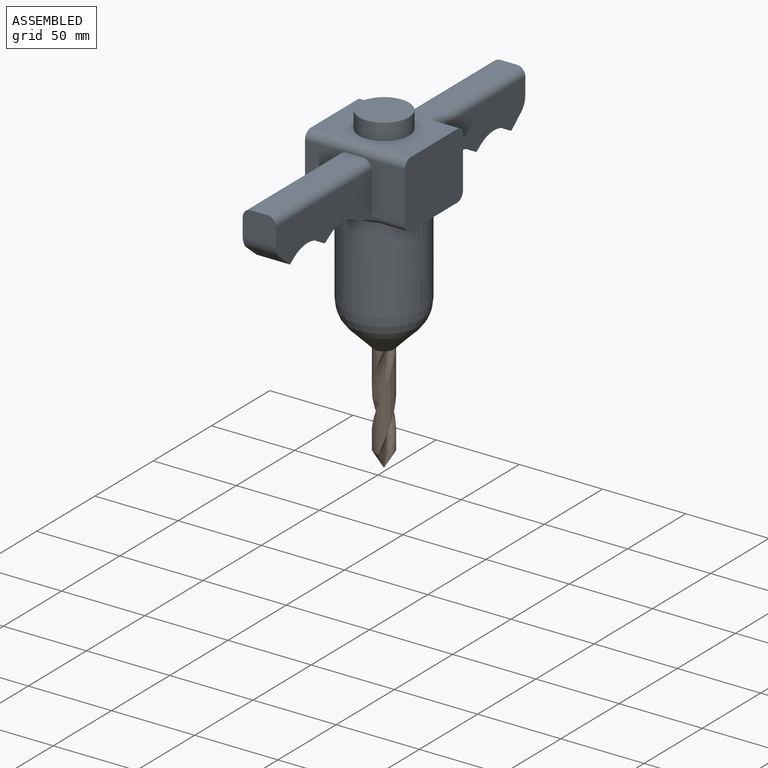
[diagram: assembled view]
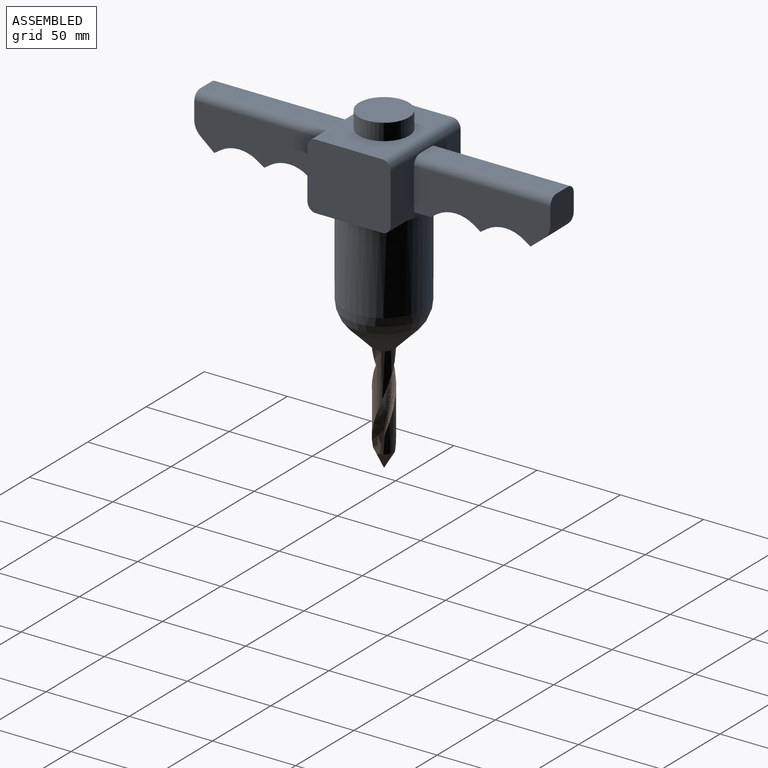
[diagram: assembled view, second angle]
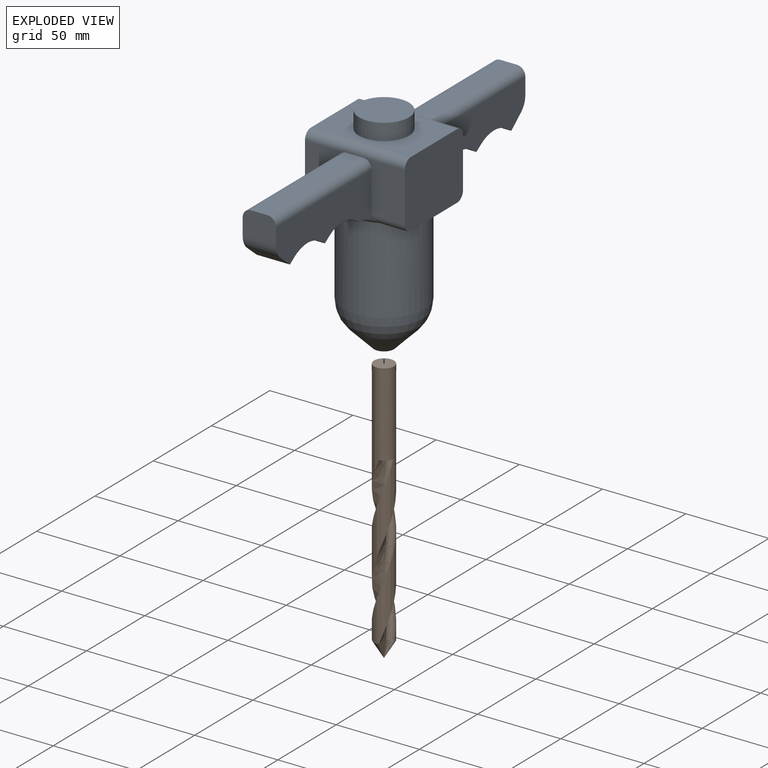
[diagram: exploded view]
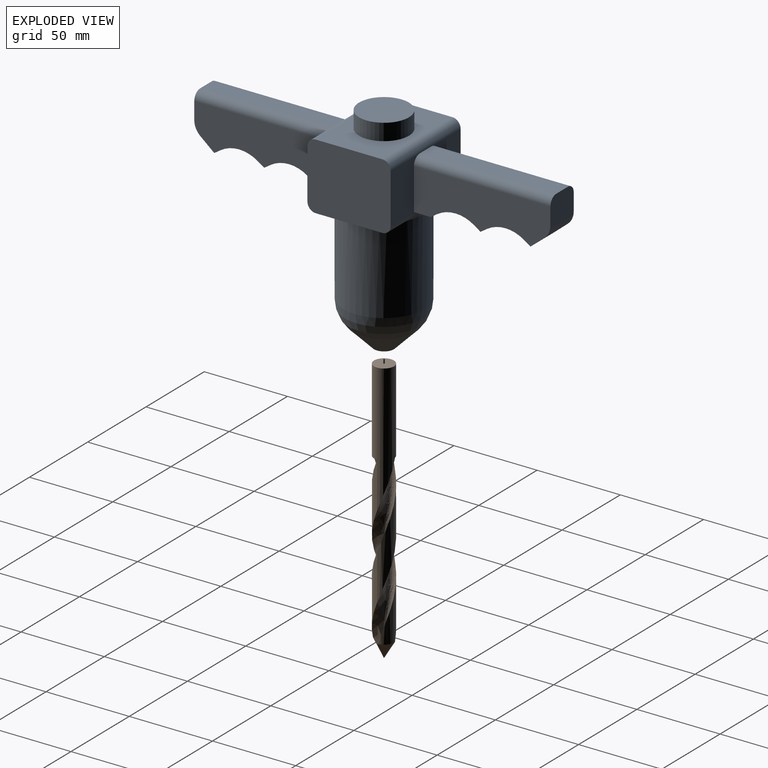
[diagram: exploded view, second angle]
ASSEMBLY  parts=2 mates=2
PART A: 57 faces, bbox 60x214x128.4 mm
  f0: plane 40x16.07mm, normal (0,0,-1), area 349.7mm2, adj f10,f16,f51,f55
  f1: cone r=17.81mm half-angle=45deg, axis (0,0,1), area 1248.9mm2, adj f3,f7
  f2: cylinder r=23.37mm len=52.13mm, axis (0,0,-1), area 7655.5mm2, adj f3,f4
  f3: torus R=4.37mm, axis (0,0,-1), area 2013.9mm2, adj f1,f2
  f4: plane 46.75x46.75mm, normal (0,0,-1), area 1603.1mm2, adj f2,f6
  f5: plane 12x12mm, normal (0,0,-1), area 113.1mm2, adj f6
  f6: cylinder r=6mm len=15.63mm, axis (0,0,-1), area 589.1mm2, adj f4,f5
  f7: cylinder r=6mm len=12mm, axis (0,0,-1), area 37.7mm2, adj f1,f8
  f8: cone r=18.51mm half-angle=45deg, axis (0,0,1), area 1363mm2, adj f7,f15
  f9: plane 60x40mm, normal (0,0,1), area 1693.1mm2, adj f10,f12,f17,f52,f56
  f10: plane 50x40mm, normal (-1,0,0), area 1978.5mm2, adj f0,f9,f13,f14,f51,f52,f55,f56
  f11: plane 40x16.07mm, normal (0,0,-1), area 349.7mm2, adj f12,f16,f49,f53
  f12: plane 50x40mm, normal (1,0,0), area 1978.5mm2, adj f9,f11,f13,f14,f49,f52,f53,f56
  f13: plane 60x32.58mm, normal (0,-1,0), area 1244.7mm2, adj f10,f12,f42,f43,f44,f45,f46,f53
  f14: plane 60x32.58mm, normal (0,1,0), area 1244.7mm2, adj f10,f12,f26,f30,f31,f47,f48,f49
  f15: torus R=4.37mm, axis (0,0,-1), area 2208.7mm2, adj f8,f16
  f16: cylinder r=24.37mm len=51.72mm, axis (0,0,-1), area 7919.6mm2, adj f0,f11,f15,f50,f54
  f17: cylinder r=15mm len=30mm, axis (0,0,-1), area 942.5mm2, adj f9,f18
  f18: plane 30x30mm, normal (0,0,1), area 706.9mm2, adj f17
  f19: plane 20x3.91mm, normal (0,0.55,-0.83), area 93.9mm2, adj f20,f29,f30,f31
  f20: cylinder r=20mm len=22.19mm, axis (-1,0,0), area 470.4mm2, adj f19,f21,f30,f31
  f21: plane 20x3.91mm, normal (0,-0.55,-0.83), area 93.9mm2, adj f20,f22,f30,f31
  f22: plane 20x8.4mm, normal (0,0.64,-0.77), area 218.7mm2, adj f21,f23,f30,f31
  f23: cylinder r=10mm len=20mm, axis (-1,0,0), area 175.2mm2, adj f22,f24,f30,f31
  f24: plane 20x15.32mm, normal (0,1,0), area 295.6mm2, adj f23,f25,f30,f31,f47,f48
  f25: plane 82x10mm, normal (0,0,1), area 820mm2, adj f24,f47,f48,f52
  f26: plane 20x10mm, normal (0,0,-1), area 200mm2, adj f14,f27,f30,f31
  f27: plane 20x3.91mm, normal (0,0.55,-0.83), area 93.9mm2, adj f26,f28,f30,f31
  f28: cylinder r=20mm len=22.19mm, axis (-1,0,0), area 470.4mm2, adj f27,f29,f30,f31
  f29: plane 20x3.91mm, normal (0,-0.55,-0.83), area 93.9mm2, adj f19,f28,f30,f31
  f30: plane 82x25mm, normal (1,0,0), area 1749.9mm2, adj f14,f19,f20,f21,f22,f23,f24,f26
  f31: plane 82x25mm, normal (-1,0,0), area 1749.9mm2, adj f14,f19,f20,f21,f22,f23,f24,f26
  f32: plane 82x10mm, normal (0,0,1), area 820mm2, adj f33,f45,f46,f56
  f33: plane 20x15.32mm, normal (0,-1,0), area 295.6mm2, adj f32,f34,f43,f44,f45,f46
  f34: cylinder r=10mm len=20mm, axis (-1,0,0), area 175.2mm2, adj f33,f35,f43,f44
  f35: plane 20x8.4mm, normal (0,-0.64,-0.77), area 218.7mm2, adj f34,f36,f43,f44
  f36: plane 20x3.91mm, normal (0,0.55,-0.83), area 93.9mm2, adj f35,f37,f43,f44
  f37: cylinder r=20mm len=22.19mm, axis (-1,0,0), area 470.4mm2, adj f36,f38,f43,f44
  f38: plane 20x3.91mm, normal (0,-0.55,-0.83), area 93.9mm2, adj f37,f39,f43,f44
  f39: plane 20x3.91mm, normal (0,0.55,-0.83), area 93.9mm2, adj f38,f40,f43,f44
  f40: cylinder r=20mm len=22.19mm, axis (-1,0,0), area 470.4mm2, adj f39,f41,f43,f44
  f41: plane 20x3.91mm, normal (0,-0.55,-0.83), area 93.9mm2, adj f40,f42,f43,f44
  f42: plane 20x10mm, normal (0,0,-1), area 200mm2, adj f13,f41,f43,f44
  f43: plane 82x25mm, normal (1,0,0), area 1749.9mm2, adj f13,f33,f34,f35,f36,f37,f38,f39
  f44: plane 82x25mm, normal (-1,0,0), area 1749.9mm2, adj f13,f33,f34,f35,f36,f37,f38,f39
  f45: cylinder r=5mm len=82mm, axis (0,-1,0), area 644mm2, adj f13,f32,f33,f44
  f46: cylinder r=5mm len=82mm, axis (0,1,0), area 644mm2, adj f13,f32,f33,f43
  f47: cylinder r=5mm len=82mm, axis (0,-1,0), area 644mm2, adj f14,f24,f25,f31
  f48: cylinder r=5mm len=82mm, axis (0,1,0), area 644mm2, adj f14,f24,f25,f30
  f49: cylinder r=5mm len=16.07mm, axis (1,0,0), area 126.2mm2, adj f11,f12,f14,f50
  f50: bspline ~29.46x5.62mm, area 127.4mm2, adj f14,f16,f49,f51
  f51: cylinder r=5mm len=16.07mm, axis (1,0,0), area 126.2mm2, adj f0,f10,f14,f50
  f52: cylinder r=5mm len=60mm, axis (-1,0,0), area 471.2mm2, adj f9,f10,f12,f14,f25
  f53: cylinder r=5mm len=16.07mm, axis (-1,0,0), area 126.2mm2, adj f11,f12,f13,f54
  f54: bspline ~29.46x5.62mm, area 127.4mm2, adj f13,f16,f53,f55
  f55: cylinder r=5mm len=16.07mm, axis (-1,0,0), area 126.2mm2, adj f0,f10,f13,f54
  f56: cylinder r=5mm len=60mm, axis (1,0,0), area 471.2mm2, adj f9,f10,f12,f13,f32
PART B: 16 faces, bbox 16.5x160.7x16.5 mm
  f0: cylinder r=6mm len=100mm, axis (0,1,0), area 898.6mm2, adj f1,f3,f6,f10
  f1: cylinder r=6mm len=127.66mm, axis (0,1,0), area 2694.9mm2, adj f0,f2,f3,f4,f5,f7,f8,f9
  f2: cylinder r=6mm len=50mm, axis (0,1,0), area 377.2mm2, adj f1,f4,f5,f13
  f3: bspline ~100x12.23mm, area 605mm2, adj f0,f1,f4,f7,f11
  f4: bspline ~100x15.84mm, area 794.7mm2, adj f1,f2,f3,f7,f12
  f5: bspline ~100x12.23mm, area 605mm2, adj f1,f2,f6,f8,f14
  f6: bspline ~100x15.84mm, area 794.8mm2, adj f0,f5,f8,f15
  f7: plane 9.12x5.71mm, normal (0,-1,0), area 32.1mm2, adj f1,f3,f4
  f8: plane 9.12x5.71mm, normal (0,-1,0), area 32.1mm2, adj f1,f5,f6
  f9: plane 12x12mm, normal (0,1,0), area 113.1mm2, adj f1
  f10: cone r=6mm half-angle=31deg, axis (0,1,0), area 40.5mm2, adj f0,f11,f15
  f11: plane 10.56x6.48mm, normal (1,-0.1,0), area 29.7mm2, adj f3,f10,f12
  f12: bspline ~10x6mm, area 27.1mm2, adj f4,f11,f13
  f13: cone r=6mm half-angle=31deg, axis (0,1,0), area 79.1mm2, adj f2,f12,f14
  f14: plane 10.56x6.48mm, normal (-1,-0.1,0), area 29.7mm2, adj f5,f13,f15
  f15: bspline ~10x6mm, area 27.1mm2, adj f6,f10,f14
PLACE A t=(-69.74,69.27,-6.7)mm
PLACE B rot(axis=(0,0.71,0.71),180deg) t=(-69.74,69.27,43.3)mm
MATE parallel B.f0 <-> A.f6  axis (0,0,1) through (-69.74,69.27,93.3)mm
MATE fastened B.f0 <-> A.f6  axis (0,0,1) through (-69.74,69.27,93.3)mm
